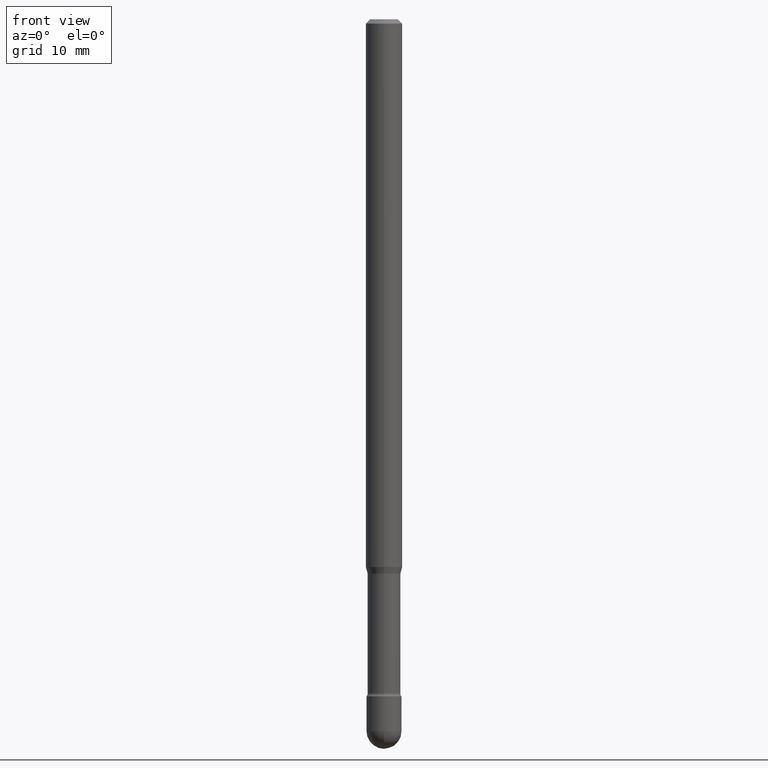
[diagram: clean part render]
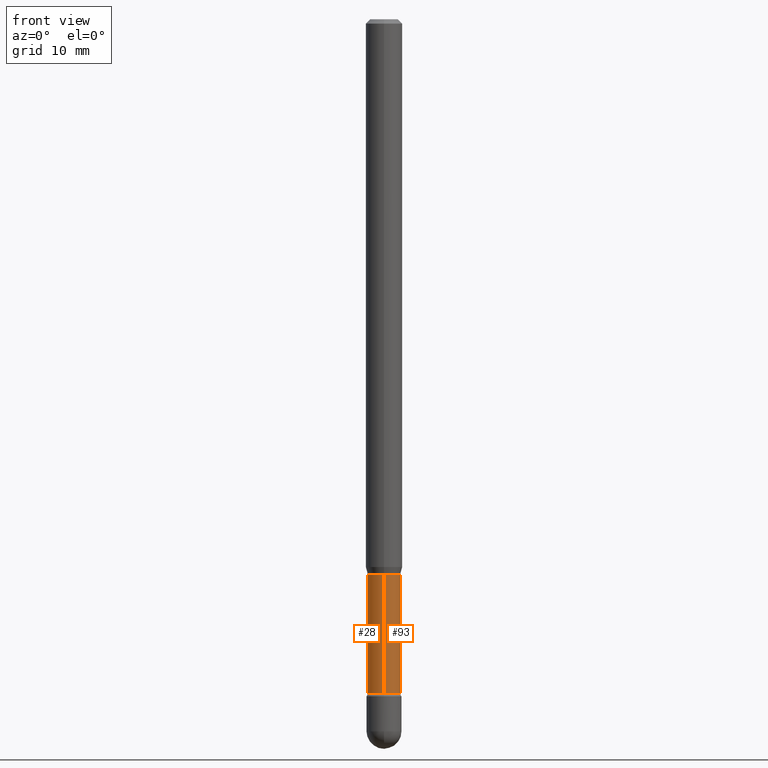
[diagram: same view with one multi-face feature highlighted, each face labeled with its STEP entity id]
A machine part, front view. The highlighted faces form ONE feature: a constant-radius fillet chain: 2 tangent blend faces with common blend radius 1.4326 mm. The faces share edges in the B-rep.
Their STEP definitions:
[1] entity #28 (Cylinder):
#28 = ADVANCED_FACE ( 'NONE', ( #334 ), #509, .T. ) ;
#46 = EDGE_CURVE ( 'NONE', #418, #407, #376, .T. ) ;
#55 = CARTESIAN_POINT ( 'NONE',  ( 4.135358722124349706E-16, 0.05639999999999196351, -2.310251153914437250 ) ) ;
#68 = DIRECTION ( 'NONE',  ( -2.445516459781718597E-29, 3.491413096180566537E-15, 1.000000000000000000 ) ) ;
#110 = CARTESIAN_POINT ( 'NONE',  ( -1.169113584055446105E-44, 1.669184350826100908E-30, 4.780733988912460139E-16 ) ) ;
#113 = CARTESIAN_POINT ( 'NONE',  ( -3.938390950215054539E-16, -0.05640000000000001262, 6.749890975158300854E-16 ) ) ;
#116 = CARTESIAN_POINT ( 'NONE',  ( -3.938390950214588618E-16, -0.05640000000000664621, -1.901974787463810879 ) ) ;
#120 = VECTOR ( 'NONE', #68, 39.37007874015748143 ) ;
#134 = EDGE_CURVE ( 'NONE', #416, #407, #439, .T. ) ;
#154 = EDGE_CURVE ( 'NONE', #535, #416, #337, .T. ) ;
#190 = DIRECTION ( 'NONE',  ( -6.982962677686265133E-15, -1.000000000000000000, 3.491413096180567326E-15 ) ) ;
#209 = DIRECTION ( 'NONE',  ( -6.982962677686265133E-15, -1.000000000000000000, 4.843702116425998430E-15 ) ) ;
#245 = AXIS2_PLACEMENT_3D ( 'NONE', #310, #361, #443 ) ;
#265 = CIRCLE ( 'NONE', #245, 0.05640000000000002650 ) ;
#271 = EDGE_CURVE ( 'NONE', #535, #418, #265, .T. ) ;
#310 = CARTESIAN_POINT ( 'NONE',  ( 5.649757223127462912E-29, -8.066041134243131553E-15, -2.310251153914436806 ) ) ;
#333 = EDGE_LOOP ( 'NONE', ( #419, #372, #367, #449 ) ) ;
#334 = FACE_OUTER_BOUND ( 'NONE', #333, .T. ) ;
#337 = LINE ( 'NONE', #470, #120 ) ;
#361 = DIRECTION ( 'NONE',  ( -2.445516459781718316E-29, 3.491413096180566537E-15, 1.000000000000000000 ) ) ;
#366 = AXIS2_PLACEMENT_3D ( 'NONE', #561, #484, #209 ) ;
#367 = ORIENTED_EDGE ( 'NONE', *, *, #46, .T. ) ;
#372 = ORIENTED_EDGE ( 'NONE', *, *, #271, .T. ) ;
#376 = LINE ( 'NONE', #113, #474 ) ;
#407 = VERTEX_POINT ( 'NONE', #116 ) ;
#415 = DIRECTION ( 'NONE',  ( -2.445516459781718597E-29, 3.491413096180566537E-15, 1.000000000000000000 ) ) ;
#416 = VERTEX_POINT ( 'NONE', #482 ) ;
#418 = VERTEX_POINT ( 'NONE', #440 ) ;
#419 = ORIENTED_EDGE ( 'NONE', *, *, #154, .F. ) ;
#439 = CIRCLE ( 'NONE', #366, 0.05640000000000000568 ) ;
#440 = CARTESIAN_POINT ( 'NONE',  ( -3.938390950214490997E-16, -0.05640000000000809643, -2.310251153914436806 ) ) ;
#443 = DIRECTION ( 'NONE',  ( -6.982962677686265922E-15, -1.000000000000000000, 4.843702116425996063E-15 ) ) ;
#449 = ORIENTED_EDGE ( 'NONE', *, *, #134, .F. ) ;
#470 = CARTESIAN_POINT ( 'NONE',  ( 4.007461029686965452E-16, 0.05640000000000001262, 2.811577002666620904E-16 ) ) ;
#474 = VECTOR ( 'NONE', #415, 39.37007874015748143 ) ;
#482 = CARTESIAN_POINT ( 'NONE',  ( 4.007461029687531460E-16, 0.05639999999999337210, -1.901974787463811545 ) ) ;
#484 = DIRECTION ( 'NONE',  ( -2.445516459781718316E-29, 3.491413096180566537E-15, 1.000000000000000000 ) ) ;
#509 = CYLINDRICAL_SURFACE ( 'NONE', #562, 0.05640000000000001262 ) ;
#535 = VERTEX_POINT ( 'NONE', #55 ) ;
#550 = DIRECTION ( 'NONE',  ( -2.445516459781718316E-29, 3.491413096180566537E-15, 1.000000000000000000 ) ) ;
#561 = CARTESIAN_POINT ( 'NONE',  ( 4.651310648832586017E-29, -6.640579681556400063E-15, -1.901974787463811323 ) ) ;
#562 = AXIS2_PLACEMENT_3D ( 'NONE', #110, #550, #190 ) ;
[2] entity #93 (Cylinder):
#26 = CARTESIAN_POINT ( 'NONE',  ( -1.169113584055446105E-44, 1.669184350826100908E-30, 4.780733988912460139E-16 ) ) ;
#46 = EDGE_CURVE ( 'NONE', #418, #407, #376, .T. ) ;
#55 = CARTESIAN_POINT ( 'NONE',  ( 4.135358722124349706E-16, 0.05639999999999196351, -2.310251153914437250 ) ) ;
#68 = DIRECTION ( 'NONE',  ( -2.445516459781718597E-29, 3.491413096180566537E-15, 1.000000000000000000 ) ) ;
#78 = DIRECTION ( 'NONE',  ( -6.982962677686265922E-15, -1.000000000000000000, 4.843702116425996063E-15 ) ) ;
#93 = ADVANCED_FACE ( 'NONE', ( #287 ), #422, .T. ) ;
#96 = AXIS2_PLACEMENT_3D ( 'NONE', #558, #384, #78 ) ;
#113 = CARTESIAN_POINT ( 'NONE',  ( -3.938390950215054539E-16, -0.05640000000000001262, 6.749890975158300854E-16 ) ) ;
#116 = CARTESIAN_POINT ( 'NONE',  ( -3.938390950214588618E-16, -0.05640000000000664621, -1.901974787463810879 ) ) ;
#120 = VECTOR ( 'NONE', #68, 39.37007874015748143 ) ;
#137 = EDGE_LOOP ( 'NONE', ( #289, #531, #340, #359 ) ) ;
#154 = EDGE_CURVE ( 'NONE', #535, #416, #337, .T. ) ;
#167 = AXIS2_PLACEMENT_3D ( 'NONE', #26, #200, #171 ) ;
#171 = DIRECTION ( 'NONE',  ( -6.982962677686265133E-15, -1.000000000000000000, 3.491413096180567326E-15 ) ) ;
#175 = DIRECTION ( 'NONE',  ( -6.982962677686265133E-15, -1.000000000000000000, 4.843702116425998430E-15 ) ) ;
#200 = DIRECTION ( 'NONE',  ( -2.445516459781718316E-29, 3.491413096180566537E-15, 1.000000000000000000 ) ) ;
#268 = CARTESIAN_POINT ( 'NONE',  ( 4.651310648832586017E-29, -6.640579681556400063E-15, -1.901974787463811323 ) ) ;
#287 = FACE_OUTER_BOUND ( 'NONE', #137, .T. ) ;
#289 = ORIENTED_EDGE ( 'NONE', *, *, #343, .T. ) ;
#312 = CIRCLE ( 'NONE', #96, 0.05640000000000002650 ) ;
#336 = CIRCLE ( 'NONE', #476, 0.05640000000000000568 ) ;
#337 = LINE ( 'NONE', #470, #120 ) ;
#340 = ORIENTED_EDGE ( 'NONE', *, *, #548, .F. ) ;
#343 = EDGE_CURVE ( 'NONE', #418, #535, #312, .T. ) ;
#359 = ORIENTED_EDGE ( 'NONE', *, *, #46, .F. ) ;
#376 = LINE ( 'NONE', #113, #474 ) ;
#384 = DIRECTION ( 'NONE',  ( -2.445516459781718316E-29, 3.491413096180566537E-15, 1.000000000000000000 ) ) ;
#406 = DIRECTION ( 'NONE',  ( -2.445516459781718316E-29, 3.491413096180566537E-15, 1.000000000000000000 ) ) ;
#407 = VERTEX_POINT ( 'NONE', #116 ) ;
#415 = DIRECTION ( 'NONE',  ( -2.445516459781718597E-29, 3.491413096180566537E-15, 1.000000000000000000 ) ) ;
#416 = VERTEX_POINT ( 'NONE', #482 ) ;
#418 = VERTEX_POINT ( 'NONE', #440 ) ;
#422 = CYLINDRICAL_SURFACE ( 'NONE', #167, 0.05640000000000001262 ) ;
#440 = CARTESIAN_POINT ( 'NONE',  ( -3.938390950214490997E-16, -0.05640000000000809643, -2.310251153914436806 ) ) ;
#470 = CARTESIAN_POINT ( 'NONE',  ( 4.007461029686965452E-16, 0.05640000000000001262, 2.811577002666620904E-16 ) ) ;
#474 = VECTOR ( 'NONE', #415, 39.37007874015748143 ) ;
#476 = AXIS2_PLACEMENT_3D ( 'NONE', #268, #406, #175 ) ;
#482 = CARTESIAN_POINT ( 'NONE',  ( 4.007461029687531460E-16, 0.05639999999999337210, -1.901974787463811545 ) ) ;
#531 = ORIENTED_EDGE ( 'NONE', *, *, #154, .T. ) ;
#535 = VERTEX_POINT ( 'NONE', #55 ) ;
#548 = EDGE_CURVE ( 'NONE', #407, #416, #336, .T. ) ;
#558 = CARTESIAN_POINT ( 'NONE',  ( 5.649757223127462912E-29, -8.066041134243131553E-15, -2.310251153914436806 ) ) ;